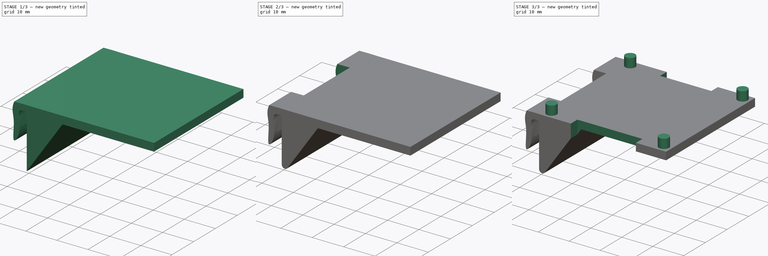
[diagram: build sequence overview — one tinted view per stage of 3, left to right]
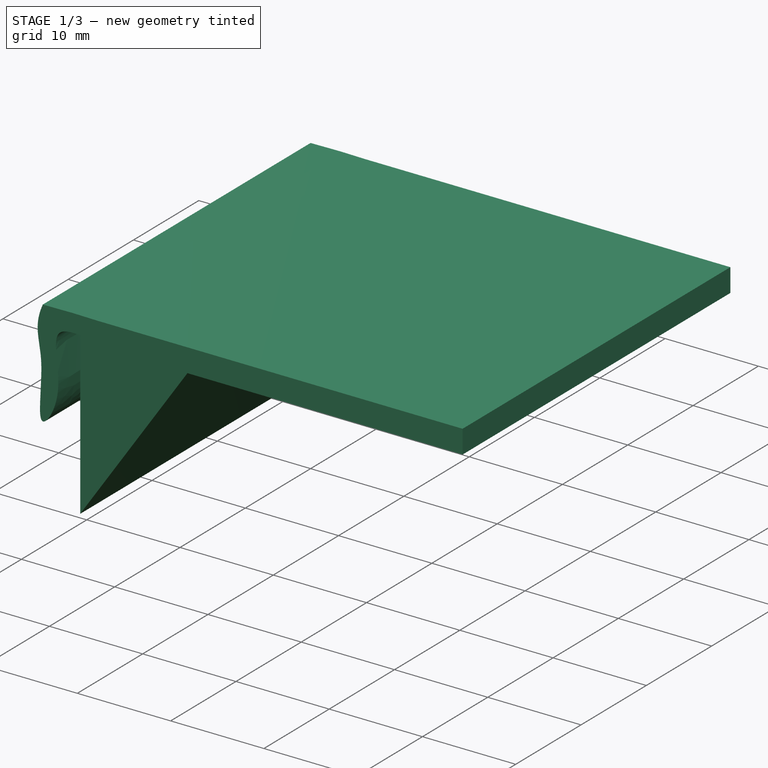
[diagram: stage 1 of 3 — iso view after this stage's code; geometry added in this stage tinted green]
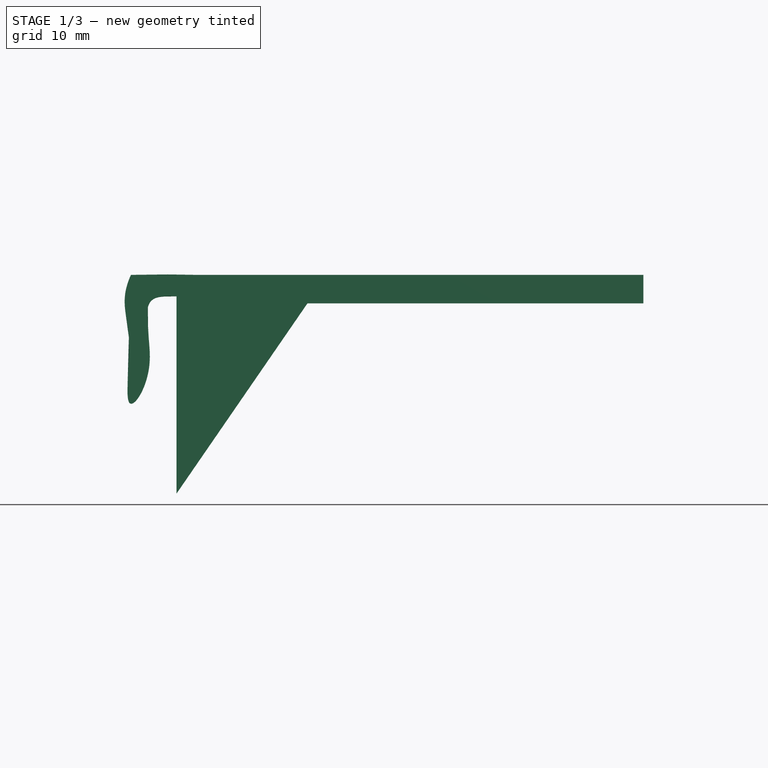
[diagram: stage 1 of 3 — front view after this stage's code; geometry added in this stage tinted green]
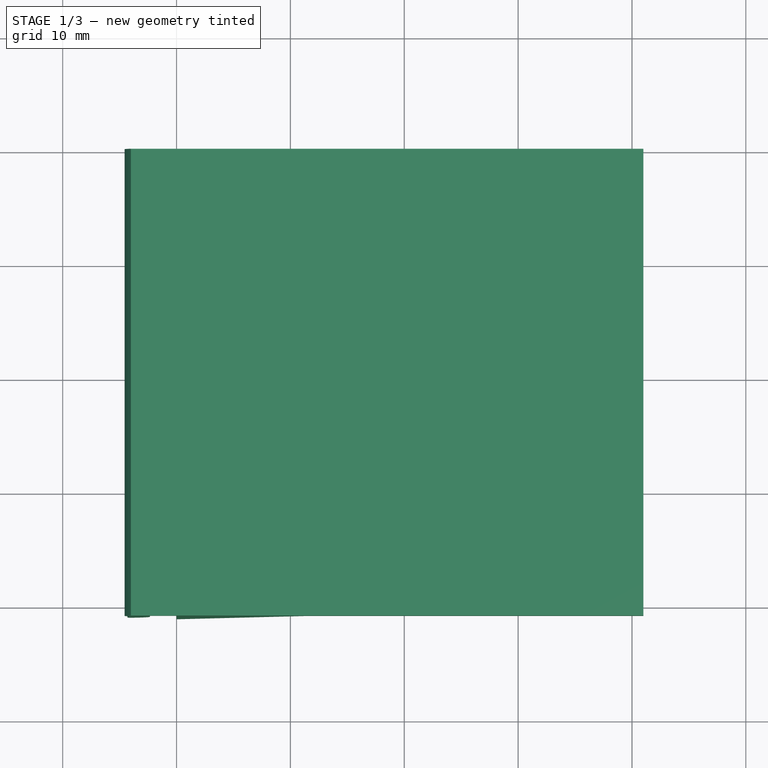
[diagram: stage 1 of 3 — top view after this stage's code; geometry added in this stage tinted green]
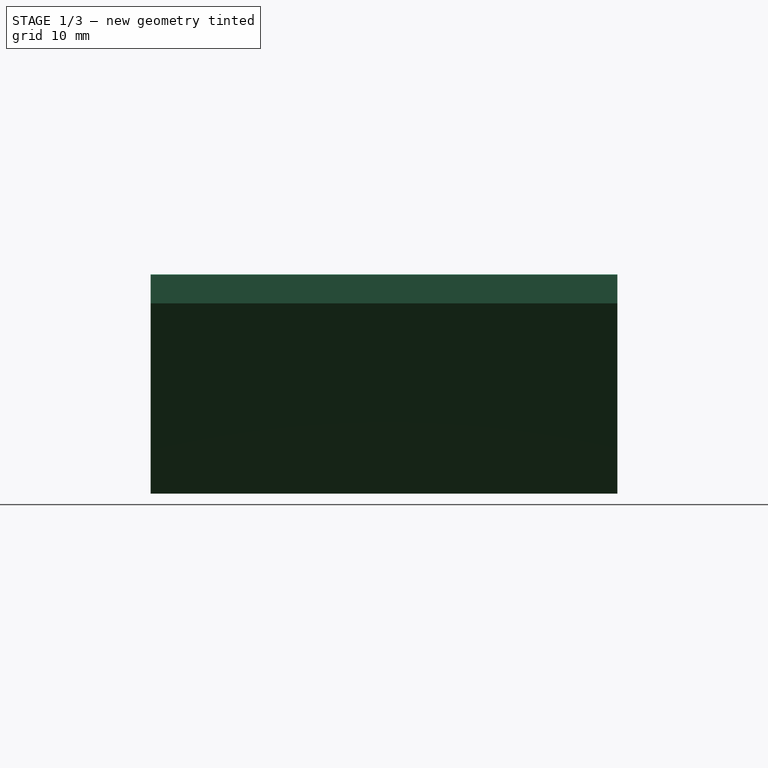
[diagram: stage 1 of 3 — right view after this stage's code; geometry added in this stage tinted green]
FCSTD DOCUMENT  (FreeCAD 0.18R4 (GitTag))
Label: sparkfun_sam_m8q_holder
License: All rights reserved
LicenseURL: http://en.wikipedia.org/wiki/All_rights_reserved
objects: Sketcher::SketchObject×5, PartDesign::Pad×3, PartDesign::Pocket×2, PartDesign::Fillet×1, PartDesign::Body×1
note: 17 computed .brp shape members not serialized (recipe doc carries the construction recipe); baked Part::Feature solids carry a one-line shape summary decoded from their .brp

FEATURE [Sketcher::SketchObject] Sketch  label="clip"
  MapMode = 5
  Placement = pos=(0,0,0) rot=(1,0,0;1.5708rad)
  Support = -> [XZ_Plane]
  sketch-geometry (17):
    g0-g8: Circle [constr] x9 (B-spline internal-alignment scaffolding for g9; pole/knot coordinates omitted)
    g9: BSplineCurve PolesCount=9 KnotsCount=7 Degree=3 IsPeriodic=0
    g10-g16: GeomPoint [constr] x7 (B-spline internal-alignment scaffolding for g9; pole/knot coordinates omitted)
  constraints (6):
    c: Equal(g0, g1-g7) x7
    c: PointOnObject(g9,g-1)
    c: Equal(g0,g8)
    c: Coincident(g8,g0)
    c: InternalAlignment(g0-g8 -> g9) x9
    c: InternalAlignment(g10-g16 -> g9) x7
FEATURE [Sketcher::SketchObject] Sketch001
  MapMode = 5
  Placement = pos=(0,0,0) rot=(1,0,0;1.5708rad)
  Support = -> [XZ_Plane]
  sketch-geometry (5):
    g0: LineSegment StartX=0 StartY=0 StartZ=0 EndX=41 EndY=0 EndZ=0
    g1: LineSegment StartX=41 StartY=0 StartZ=0 EndX=41 EndY=-2.5 EndZ=0
    g2: LineSegment StartX=41 StartY=-2.5 StartZ=0 EndX=11.4999 EndY=-2.5 EndZ=0
    g3: LineSegment StartX=11.4999 StartY=-2.5 StartZ=0 EndX=0 EndY=-19.2079 EndZ=0
    g4: LineSegment StartX=0 StartY=0 StartZ=0 EndX=1.8e-15 EndY=-19.2079 EndZ=0
  constraints (12):
    c: Coincident(g0,g1)
    c: Horizontal(g0)
    c: Vertical(g1)
    c: Coincident(g0,g-1)
    c: Distance(g0) = 41
    c: Distance(g1) = 2.5
    c: Coincident(g2,g1)
    c: Horizontal(g2)
    c: Coincident(g3,g2)
    c: PointOnObject(g3,g-2)
    c: Coincident(g4,g0)
    c: Coincident(g4,g3)
FEATURE [PartDesign::Pad] Pad  label="main"
  Length = 41
  Length2 = 100
  Placement = pos=(0,0,0) rot=(1,0,0;1.5708rad)
  Profile = -> Sketch001
  Type = 0
FEATURE [PartDesign::Pad] Pad001  label="clippy"
  BaseFeature = -> Pad
  Length = 41
  Length2 = 100
  Placement = pos=(0,0,0) rot=(1,0,0;1.5708rad)
  Profile = -> Sketch
  Type = 0
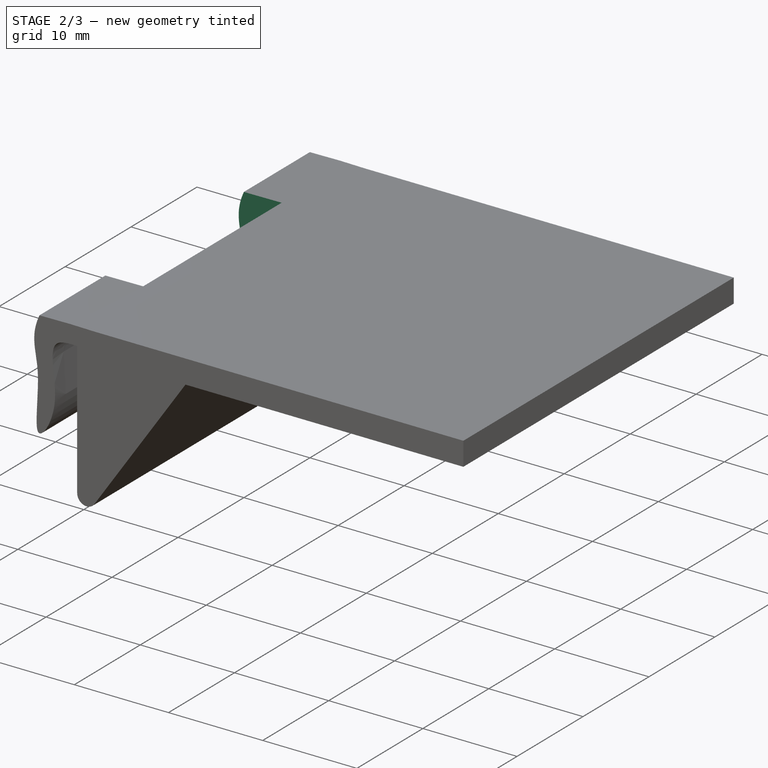
[diagram: stage 2 of 3 — iso view after this stage's code; geometry added in this stage tinted green]
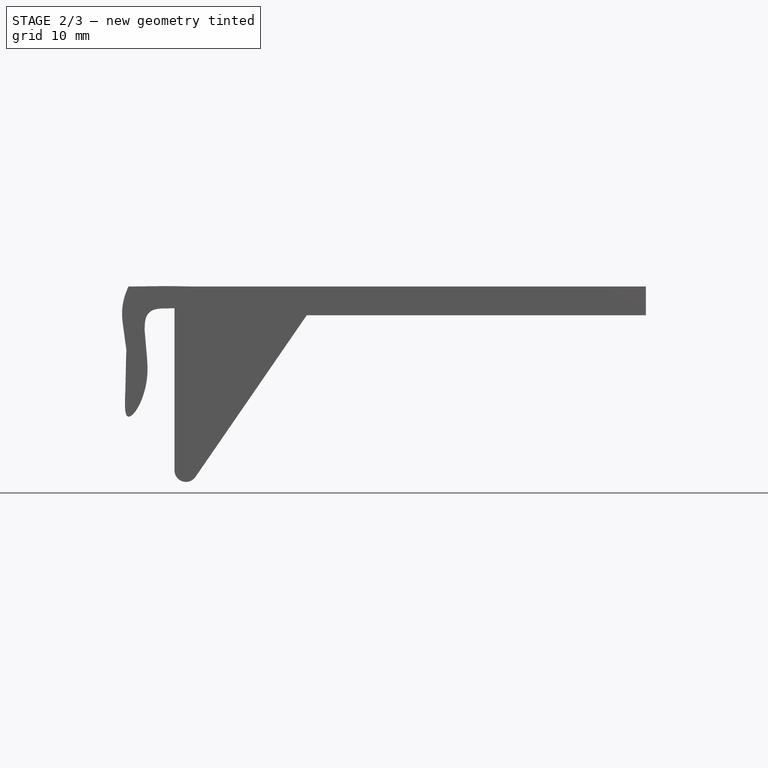
[diagram: stage 2 of 3 — front view after this stage's code; geometry added in this stage tinted green]
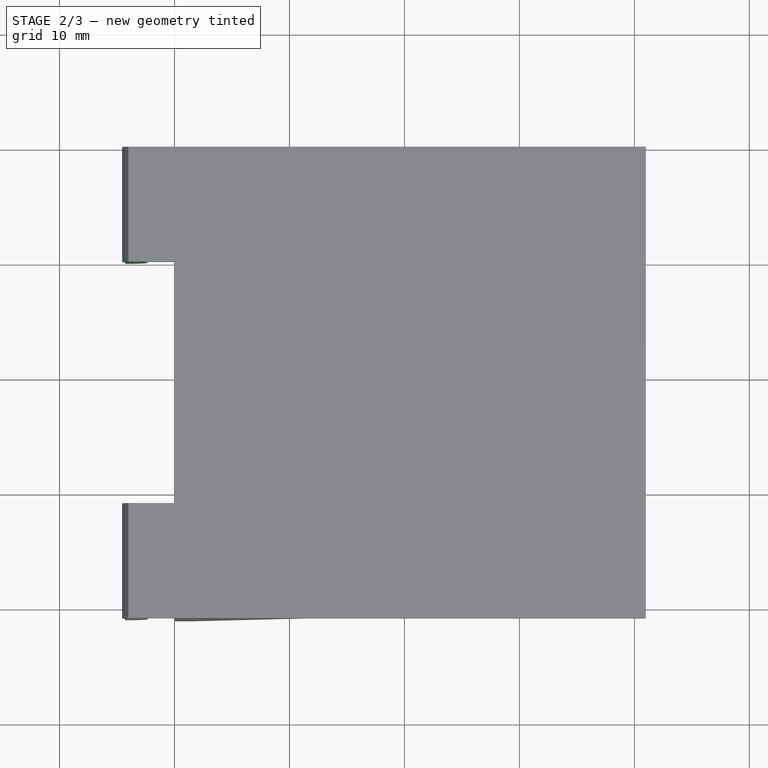
[diagram: stage 2 of 3 — top view after this stage's code; geometry added in this stage tinted green]
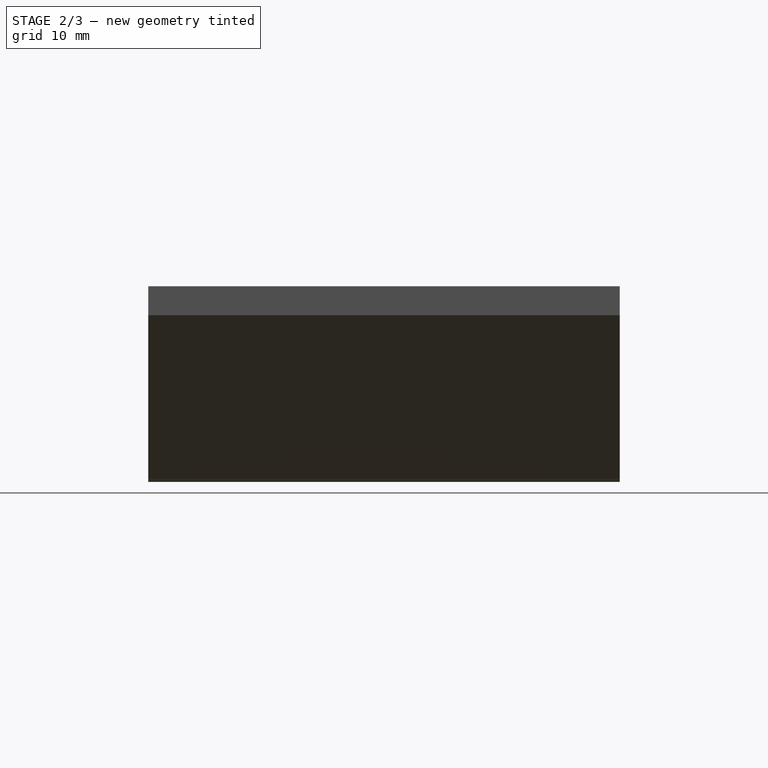
[diagram: stage 2 of 3 — right view after this stage's code; geometry added in this stage tinted green]
FEATURE [PartDesign::Fillet] Fillet
  Base = -> Pad001 [Edge16]
  BaseFeature = -> Pad001
  Placement = pos=(0,0,0) rot=(1,0,0;1.5708rad)
  Radius = 1
FEATURE [Sketcher::SketchObject] Sketch002
  MapMode = 5
  Placement = pos=(0,0,0) rot=(0,0,1;3.14159rad)
  Support = -> [Fillet]
  sketch-geometry (4):
    g0: LineSegment StartX=0 StartY=10 StartZ=0 EndX=10 EndY=10 EndZ=0
    g1: LineSegment StartX=10 StartY=10 StartZ=0 EndX=10 EndY=31 EndZ=0
    g2: LineSegment StartX=10 StartY=31 StartZ=0 EndX=0 EndY=31 EndZ=0
    g3: LineSegment StartX=0 StartY=31 StartZ=0 EndX=0 EndY=10 EndZ=0
  constraints (12):
    c: Coincident(g0,g1)
    c: Coincident(g1,g2)
    c: Coincident(g2,g3)
    c: Coincident(g3,g0)
    c: Horizontal(g0)
    c: Horizontal(g2)
    c: Vertical(g1)
    c: Vertical(g3)
    c: Distance(g1) = 21
    c: DistanceY(g-1,g0) = 10
    c: Distance(g0) = 10
    c: DistanceX(g-1,g0) = 0
FEATURE [PartDesign::Pocket] Pocket  label="clip_cut"
  BaseFeature = -> Fillet
  Length = 17
  Length2 = 10
  Placement = pos=(0,0,0) rot=(1,0,0;1.5708rad)
  Profile = -> Sketch002
  Type = 4
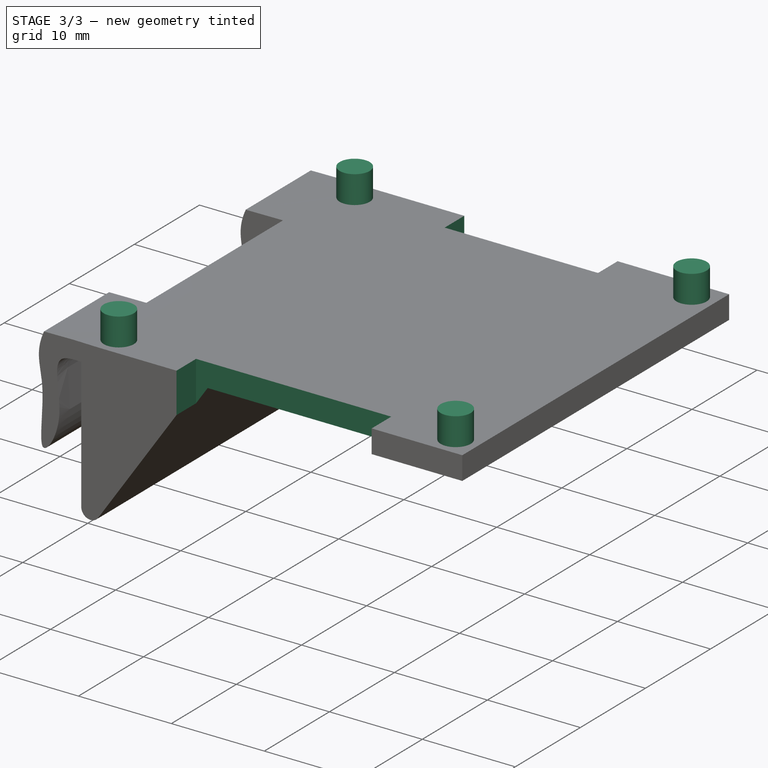
[diagram: stage 3 of 3 — iso view after this stage's code; geometry added in this stage tinted green]
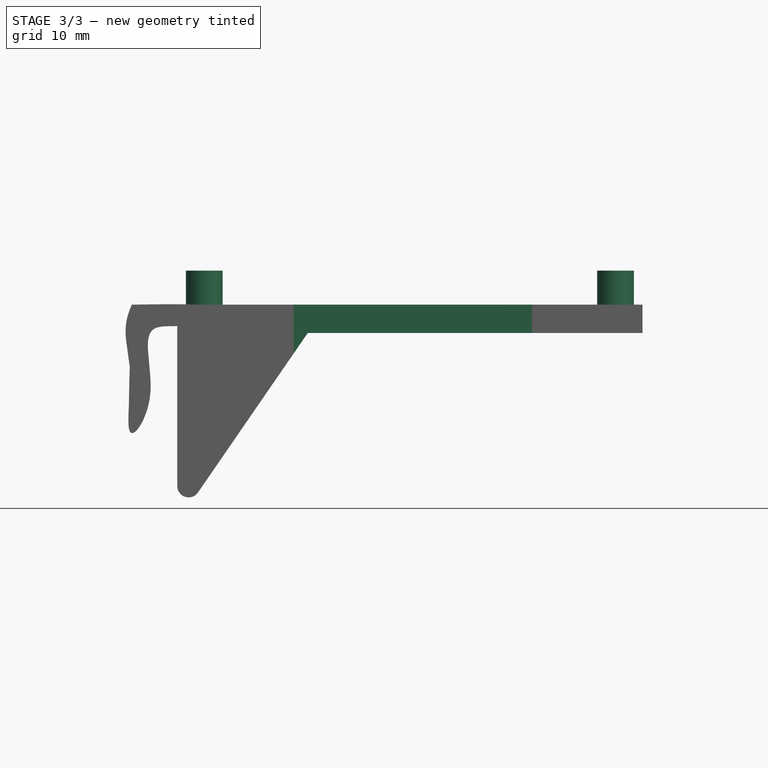
[diagram: stage 3 of 3 — front view after this stage's code; geometry added in this stage tinted green]
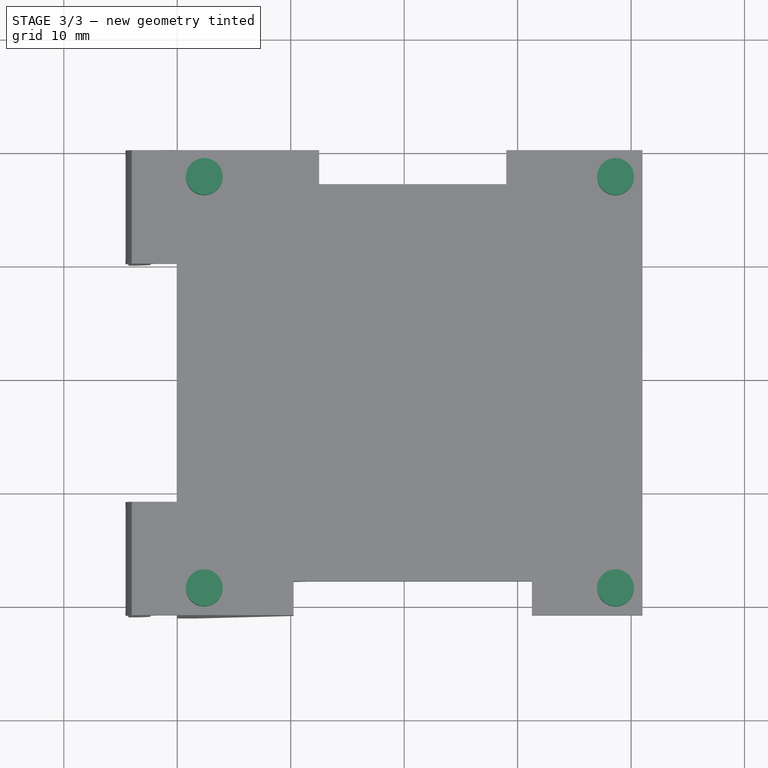
[diagram: stage 3 of 3 — top view after this stage's code; geometry added in this stage tinted green]
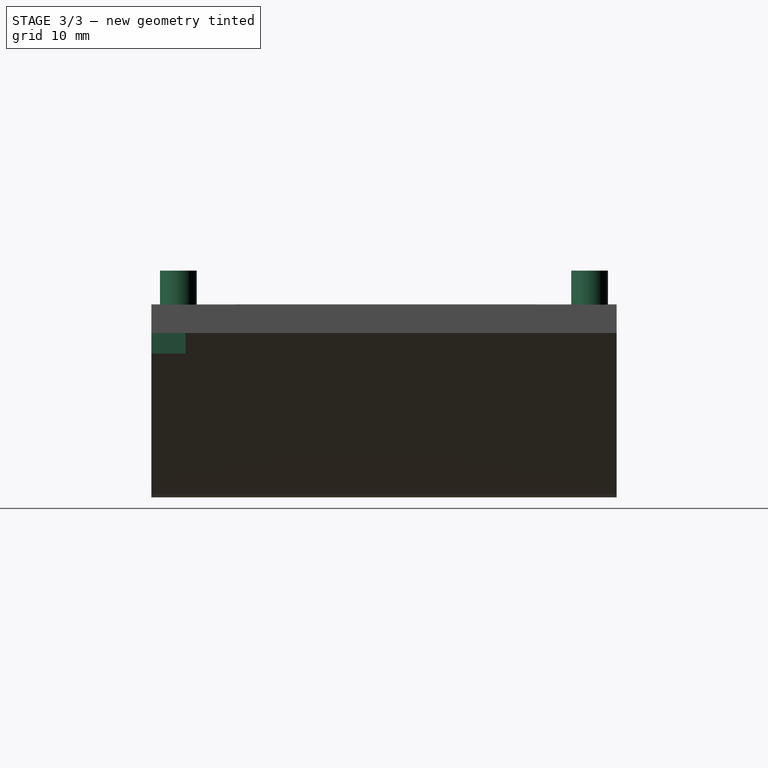
[diagram: stage 3 of 3 — right view after this stage's code; geometry added in this stage tinted green]
FEATURE [Sketcher::SketchObject] Sketch003
  MapMode = 5
  Placement = pos=(0,0,0) rot=(0,0,1;3.14159rad)
  Support = -> [Pocket]
  sketch-geometry (4):
    g0: Circle CenterX=-2.375 CenterY=2.375 CenterZ=0 NormalX=0 NormalY=0 NormalZ=1 AngleXU=0 Radius=1.62
    g1: Circle CenterX=-38.625 CenterY=38.625 CenterZ=0 NormalX=0 NormalY=0 NormalZ=1 AngleXU=0 Radius=1.62
    g2: Circle CenterX=-38.625 CenterY=2.375 CenterZ=0 NormalX=0 NormalY=0 NormalZ=1 AngleXU=0 Radius=1.62
    g3: Circle CenterX=-2.375 CenterY=38.625 CenterZ=0 NormalX=0 NormalY=0 NormalZ=1 AngleXU=0 Radius=1.62
  constraints (12):
    c: Diameter(g0) = 3.24
    c: Equal(g0,g1) = 3.26
    c: Equal(g0,g3) = 3.26
    c: Equal(g3,g2) = 3.26
    c: DistanceX(g0,g-1) = 2.375
    c: DistanceY(g-1,g0) = 2.375
    c: DistanceX(g2,g-1) = 38.625
    c: DistanceY(g-1,g2) = 2.375
    c: DistanceY(g-1,g3) = 38.625
    c: DistanceX(g3,g-1) = 2.375
    c: DistanceY(g-1,g1) = 38.625
    c: DistanceX(g1,g-1) = 38.625
FEATURE [PartDesign::Pad] Pad002  label="cylinders"
  BaseFeature = -> Pocket
  Length = 3
  Length2 = 100
  Placement = pos=(0,0,0) rot=(1,0,0;1.5708rad)
  Profile = -> Sketch003
  Type = 0
FEATURE [Sketcher::SketchObject] Sketch004
  MapMode = 5
  Placement = pos=(0,0,0) rot=(0,0,1;3.14159rad)
  Support = -> [Pad002]
  sketch-geometry (8):
    g0: LineSegment StartX=-31.25 StartY=43 StartZ=0 EndX=-10.25 EndY=43 EndZ=0
    g1: LineSegment StartX=-10.25 StartY=43 StartZ=0 EndX=-10.25 EndY=38 EndZ=0
    g2: LineSegment StartX=-10.25 StartY=38 StartZ=0 EndX=-31.25 EndY=38 EndZ=0
    g3: LineSegment StartX=-31.25 StartY=38 StartZ=0 EndX=-31.25 EndY=43 EndZ=0
    g4: LineSegment StartX=-29 StartY=3 StartZ=0 EndX=-12.5 EndY=3 EndZ=0
    g5: LineSegment StartX=-12.5 StartY=3 StartZ=0 EndX=-12.5 EndY=-2 EndZ=0
    g6: LineSegment StartX=-12.5 StartY=-2 StartZ=0 EndX=-29 EndY=-2 EndZ=0
    g7: LineSegment StartX=-29 StartY=-2 StartZ=0 EndX=-29 EndY=3 EndZ=0
  constraints (24):
    c: Coincident(g0,g1)
    c: Coincident(g1,g2)
    c: Coincident(g2,g3)
    c: Coincident(g3,g0)
    c: Horizontal(g0)
    c: Horizontal(g2)
    c: Vertical(g1)
    c: Vertical(g3)
    c: Coincident(g4,g5)
    c: Coincident(g5,g6)
    c: Coincident(g6,g7)
    c: Coincident(g7,g4)
    c: Horizontal(g4)
    c: Horizontal(g6)
    c: Vertical(g5)
    c: Vertical(g7)
    c: Distance(g6) = 16.5
    c: Distance(g0) = 21
    c: DistanceX(g1,g-1) = 10.25
    c: DistanceY(g-1,g1) = 38
    c: Distance(g3) = 5
    c: DistanceX(g5,g-1) = 12.5
    c: Distance(g5) = 5
    c: DistanceY(g-1,g4) = 3
FEATURE [PartDesign::Pocket] Pocket001  label="pins"
  BaseFeature = -> Pad002
  Length = 5
  Length2 = 100
  Placement = pos=(0,0,0) rot=(1,0,0;1.5708rad)
  Profile = -> Sketch004
  Type = 0
FEATURE [PartDesign::Body] Body
  Group = -> [Sketch,Sketch001,Pad,Pad001,Fillet,Sketch002,Pocket,Sketch003,Pad002,Sketch004,Pocket001]
  Origin = -> Origin
  Tip = -> Pocket001
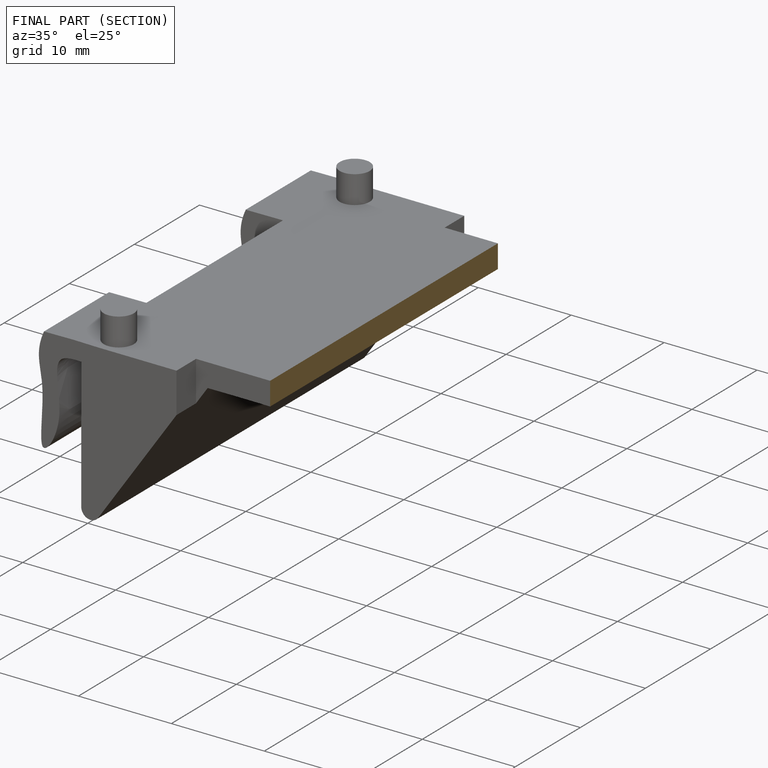
[diagram: finished part — half-section view (interior)]
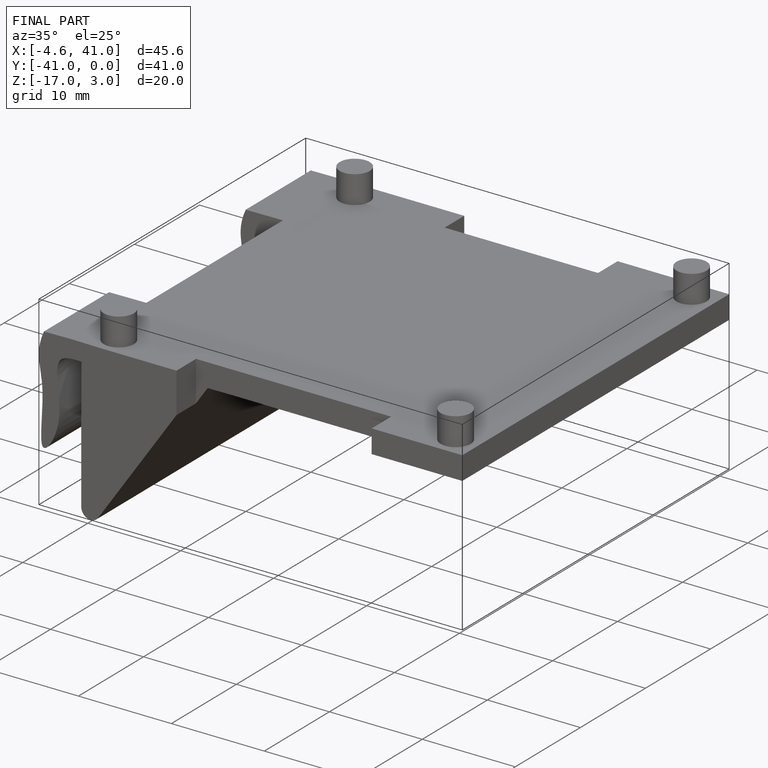
[diagram: finished part — iso view with bounding-box wireframe]
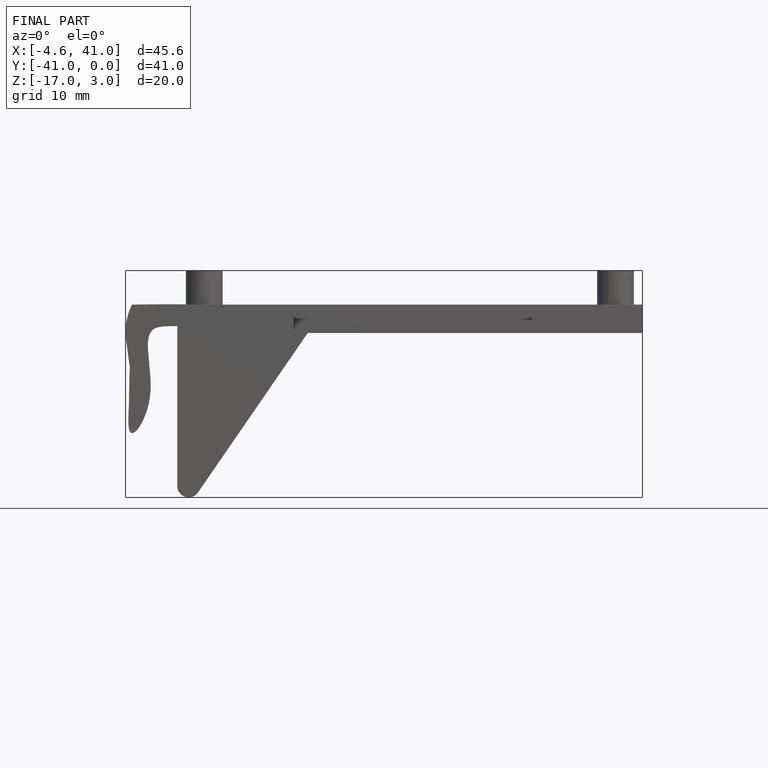
[diagram: finished part — front view with bounding-box wireframe]
